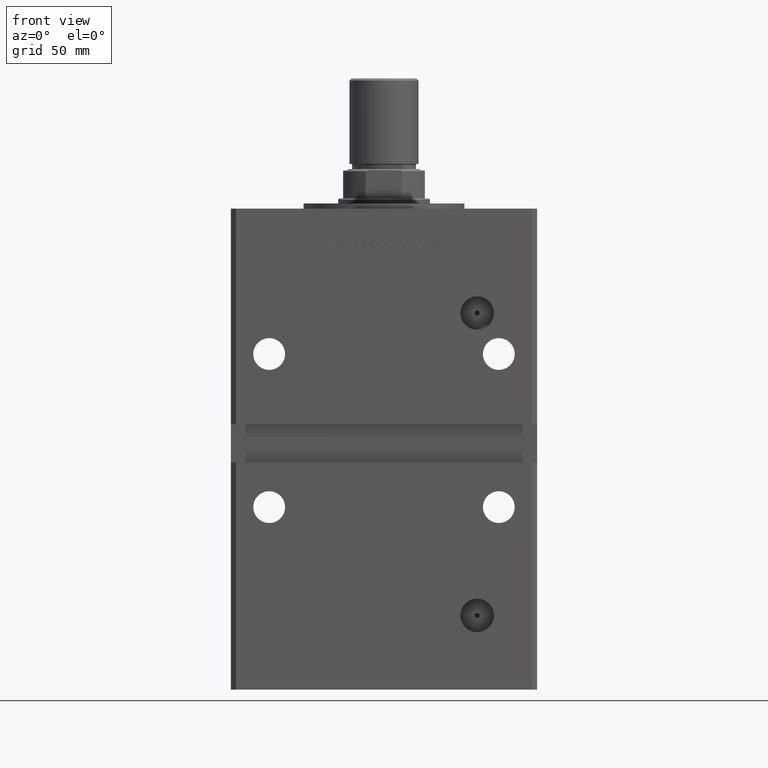
[diagram: clean part render]
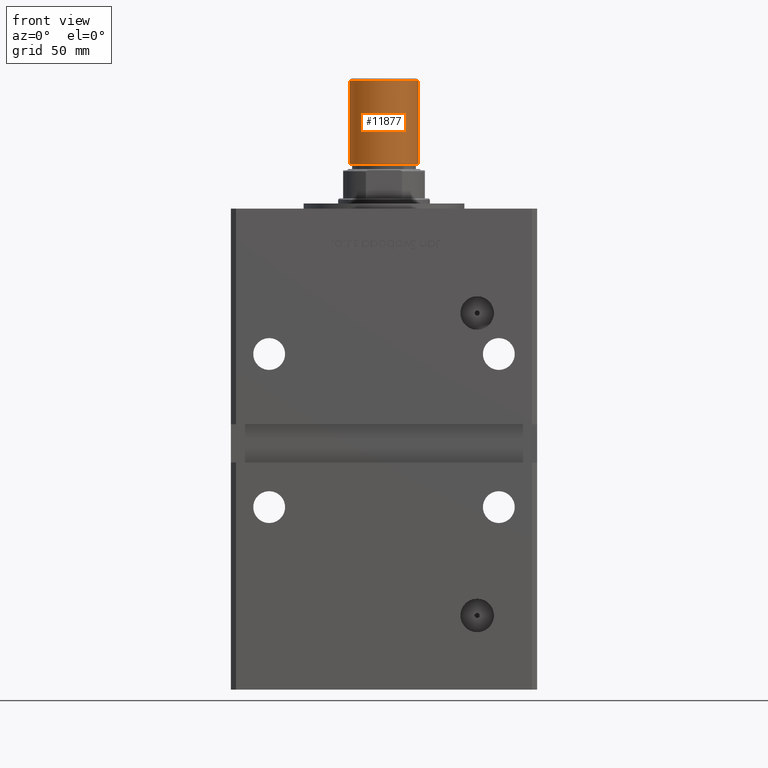
[diagram: same view with one face highlighted and labeled with its STEP entity id]
A machine part, front view. The second image highlights one B-rep face of the part: STEP entity #11877.
In plain terms, the highlighted cylindrical surface (edge-blend (fillet) strip) has radius 13.5 mm, axis along (0, -0, 1).
Its self-contained STEP definition (entity closure, byte-faithful):
#199 = CIRCLE ( 'NONE', #44262, 13.50000000000000000 ) ;
#266 = FACE_OUTER_BOUND ( 'NONE', #51149, .T. ) ;
#528 = DIRECTION ( 'NONE',  ( -1.000000000000000000, 0.000000000000000000, 0.000000000000000000 ) ) ;
#2957 = LINE ( 'NONE', #39466, #6594 ) ;
#3589 = VERTEX_POINT ( 'NONE', #53247 ) ;
#6594 = VECTOR ( 'NONE', #11071, 1000.000000000000000 ) ;
#11071 = DIRECTION ( 'NONE',  ( -0.000000000000000000, -0.000000000000000000, -1.000000000000000000 ) ) ;
#11877 = ADVANCED_FACE ( 'NONE', ( #266 ), #21087, .T. ) ;
#13427 = DIRECTION ( 'NONE',  ( -0.000000000000000000, -0.000000000000000000, -1.000000000000000000 ) ) ;
#15589 = CARTESIAN_POINT ( 'NONE',  ( 0.000000000000000000, 0.000000000000000000, 33.50000000000000000 ) ) ;
#16774 = CARTESIAN_POINT ( 'NONE',  ( 0.000000000000000000, 0.000000000000000000, 33.50000000000000000 ) ) ;
#19696 = AXIS2_PLACEMENT_3D ( 'NONE', #39409, #23451, #31043 ) ;
#19837 = AXIS2_PLACEMENT_3D ( 'NONE', #16774, #49736, #528 ) ;
#20197 = EDGE_CURVE ( 'NONE', #49548, #3589, #199, .T. ) ;
#21087 = CYLINDRICAL_SURFACE ( 'NONE', #19837, 13.50000000000000000 ) ;
#23407 = ORIENTED_EDGE ( 'NONE', *, *, #38560, .T. ) ;
#23425 = DIRECTION ( 'NONE',  ( 0.000000000000000000, 0.000000000000000000, 1.000000000000000000 ) ) ;
#23451 = DIRECTION ( 'NONE',  ( -0.000000000000000000, -0.000000000000000000, 1.000000000000000000 ) ) ;
#24049 = CARTESIAN_POINT ( 'NONE',  ( -13.50000000000000000, 0.000000000000000000, 0.7999999999999951594 ) ) ;
#24674 = VERTEX_POINT ( 'NONE', #45118 ) ;
#25631 = ORIENTED_EDGE ( 'NONE', *, *, #20197, .F. ) ;
#28626 = CARTESIAN_POINT ( 'NONE',  ( -13.50000000000000000, 0.000000000000000000, 33.50000000000000000 ) ) ;
#30195 = LINE ( 'NONE', #38557, #52298 ) ;
#31043 = DIRECTION ( 'NONE',  ( 1.000000000000000000, 0.000000000000000000, 0.000000000000000000 ) ) ;
#32645 = EDGE_CURVE ( 'NONE', #3589, #24674, #30195, .T. ) ;
#35187 = EDGE_CURVE ( 'NONE', #49548, #35278, #2957, .T. ) ;
#35278 = VERTEX_POINT ( 'NONE', #24049 ) ;
#38557 = CARTESIAN_POINT ( 'NONE',  ( 13.50000000000000000, 1.653273178848926867E-15, 33.50000000000000000 ) ) ;
#38560 = EDGE_CURVE ( 'NONE', #35278, #24674, #42160, .T. ) ;
#38827 = ORIENTED_EDGE ( 'NONE', *, *, #32645, .F. ) ;
#39409 = CARTESIAN_POINT ( 'NONE',  ( 0.000000000000000000, 0.000000000000000000, 0.7999999999999951594 ) ) ;
#39466 = CARTESIAN_POINT ( 'NONE',  ( -13.50000000000000000, 0.000000000000000000, 33.50000000000000000 ) ) ;
#40196 = DIRECTION ( 'NONE',  ( 1.000000000000000000, 0.000000000000000000, 0.000000000000000000 ) ) ;
#42160 = CIRCLE ( 'NONE', #19696, 13.50000000000000000 ) ;
#44262 = AXIS2_PLACEMENT_3D ( 'NONE', #15589, #23425, #40196 ) ;
#45118 = CARTESIAN_POINT ( 'NONE',  ( 13.50000000000000000, 1.653273178848926867E-15, 0.7999999999999951594 ) ) ;
#49080 = ORIENTED_EDGE ( 'NONE', *, *, #35187, .T. ) ;
#49548 = VERTEX_POINT ( 'NONE', #28626 ) ;
#49736 = DIRECTION ( 'NONE',  ( -0.000000000000000000, -0.000000000000000000, -1.000000000000000000 ) ) ;
#51149 = EDGE_LOOP ( 'NONE', ( #38827, #25631, #49080, #23407 ) ) ;
#52298 = VECTOR ( 'NONE', #13427, 1000.000000000000000 ) ;
#53247 = CARTESIAN_POINT ( 'NONE',  ( 13.50000000000000000, 1.653273178848926867E-15, 33.50000000000000000 ) ) ;